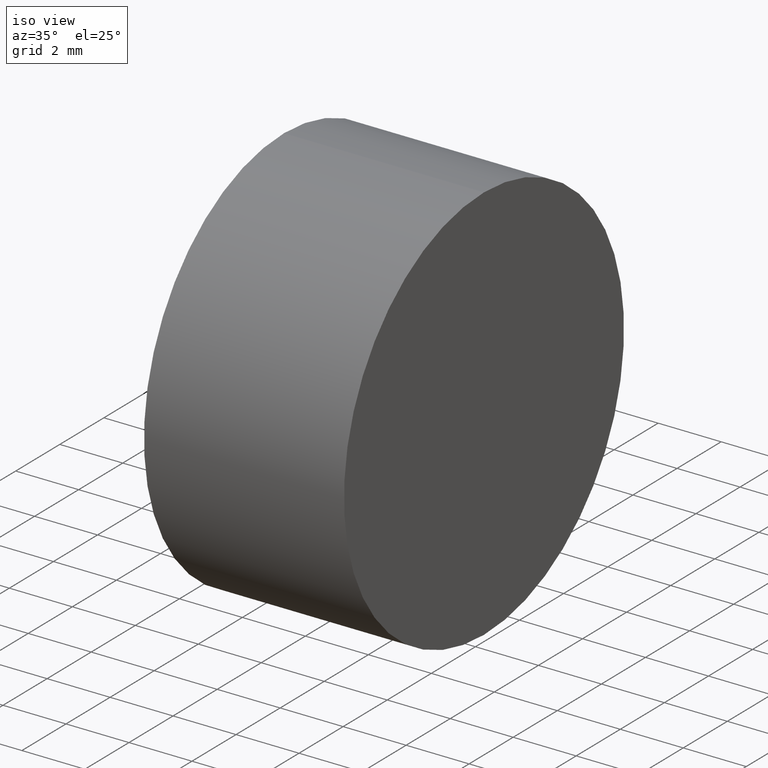
[diagram: clean part render]
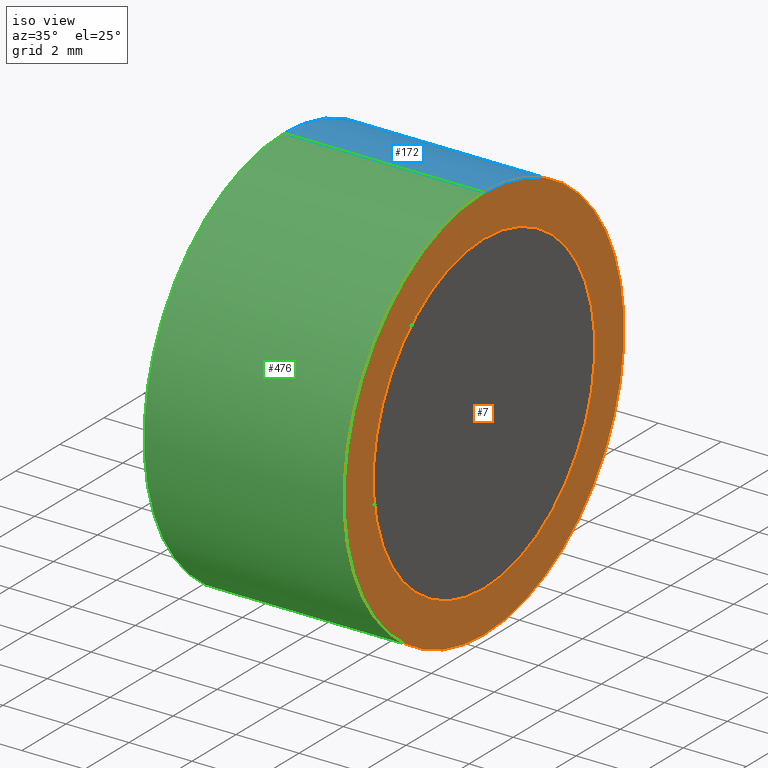
[diagram: same view with three faces highlighted in distinct colors, each labeled with its STEP entity id]
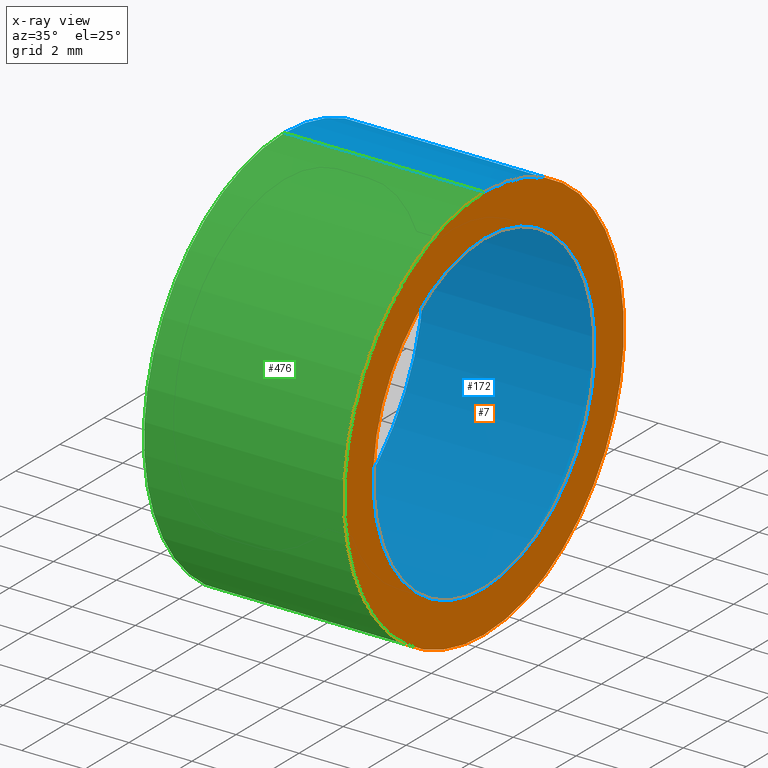
[diagram: x-ray of the same camera — body ghosted, the three highlighted faces saturated]
A machine part, iso view with three faces highlighted in distinct colors.
The next image is the same camera in x-ray (body ghosted, the three faces saturated) — at least one of them is partly hidden behind the body in this view.
Their STEP definitions:

[orange] entity #7 — the highlighted planar face has unit normal (1, 0, 0).
#7 = ADVANCED_FACE ( 'NONE', ( #564, #51 ), #512, .T. ) ;
#13 = CARTESIAN_POINT ( 'NONE',  ( 234.1145190849216200, 0.0000000000000000000, 0.0000000000000000000 ) ) ;
#29 = CARTESIAN_POINT ( 'NONE',  ( 234.1145190849216200, 108.2256958952383700, 0.0000000000000000000 ) ) ;
#41 = CARTESIAN_POINT ( 'NONE',  ( 234.1145190849216200, 108.2256958952383700, 5.025000000000015500 ) ) ;
#51 = FACE_OUTER_BOUND ( 'NONE', #432, .T. ) ;
#78 = DIRECTION ( 'NONE',  ( -1.000000000000000000, -0.0000000000000000000, -0.0000000000000000000 ) ) ;
#84 = EDGE_CURVE ( 'NONE', #565, #414, #580, .T. ) ;
#90 = EDGE_LOOP ( 'NONE', ( #109, #175 ) ) ;
#109 = ORIENTED_EDGE ( 'NONE', *, *, #84, .T. ) ;
#126 = EDGE_CURVE ( 'NONE', #174, #422, #384, .T. ) ;
#140 = DIRECTION ( 'NONE',  ( -1.000000000000000000, -0.0000000000000000000, -0.0000000000000000000 ) ) ;
#157 = EDGE_CURVE ( 'NONE', #422, #174, #464, .T. ) ;
#166 = DIRECTION ( 'NONE',  ( 1.000000000000000000, 0.0000000000000000000, 0.0000000000000000000 ) ) ;
#173 = DIRECTION ( 'NONE',  ( 0.0000000000000000000, 0.0000000000000000000, -1.000000000000000000 ) ) ;
#174 = VERTEX_POINT ( 'NONE', #659 ) ;
#175 = ORIENTED_EDGE ( 'NONE', *, *, #406, .T. ) ;
#186 = AXIS2_PLACEMENT_3D ( 'NONE', #495, #140, #434 ) ;
#197 = CARTESIAN_POINT ( 'NONE',  ( 234.1145190849216200, 108.2256958952383700, 0.0000000000000000000 ) ) ;
#203 = AXIS2_PLACEMENT_3D ( 'NONE', #13, #166, #173 ) ;
#289 = AXIS2_PLACEMENT_3D ( 'NONE', #197, #551, #606 ) ;
#296 = DIRECTION ( 'NONE',  ( -1.000000000000000000, -0.0000000000000000000, -0.0000000000000000000 ) ) ;
#324 = ORIENTED_EDGE ( 'NONE', *, *, #126, .F. ) ;
#356 = CARTESIAN_POINT ( 'NONE',  ( 234.1145190849216200, 108.2256958952383700, 0.0000000000000000000 ) ) ;
#384 = CIRCLE ( 'NONE', #289, 6.350000000000008500 ) ;
#406 = EDGE_CURVE ( 'NONE', #414, #565, #489, .T. ) ;
#414 = VERTEX_POINT ( 'NONE', #433 ) ;
#422 = VERTEX_POINT ( 'NONE', #429 ) ;
#428 = DIRECTION ( 'NONE',  ( 0.0000000000000000000, 0.0000000000000000000, 1.000000000000000000 ) ) ;
#429 = CARTESIAN_POINT ( 'NONE',  ( 234.1145190849216200, 108.2256958952383700, -6.350000000000008500 ) ) ;
#432 = EDGE_LOOP ( 'NONE', ( #324, #621 ) ) ;
#433 = CARTESIAN_POINT ( 'NONE',  ( 234.1145190849216200, 108.2256958952383700, -5.025000000000015500 ) ) ;
#434 = DIRECTION ( 'NONE',  ( 0.0000000000000000000, 0.0000000000000000000, 1.000000000000000000 ) ) ;
#464 = CIRCLE ( 'NONE', #523, 6.350000000000008500 ) ;
#489 = CIRCLE ( 'NONE', #550, 5.025000000000015500 ) ;
#495 = CARTESIAN_POINT ( 'NONE',  ( 234.1145190849216200, 108.2256958952383700, 0.0000000000000000000 ) ) ;
#512 = PLANE ( 'NONE',  #203 ) ;
#523 = AXIS2_PLACEMENT_3D ( 'NONE', #356, #296, #650 ) ;
#550 = AXIS2_PLACEMENT_3D ( 'NONE', #29, #78, #428 ) ;
#551 = DIRECTION ( 'NONE',  ( -1.000000000000000000, -0.0000000000000000000, -0.0000000000000000000 ) ) ;
#564 = FACE_BOUND ( 'NONE', #90, .T. ) ;
#565 = VERTEX_POINT ( 'NONE', #41 ) ;
#580 = CIRCLE ( 'NONE', #186, 5.025000000000015500 ) ;
#606 = DIRECTION ( 'NONE',  ( 0.0000000000000000000, 0.0000000000000000000, 1.000000000000000000 ) ) ;
#621 = ORIENTED_EDGE ( 'NONE', *, *, #157, .F. ) ;
#650 = DIRECTION ( 'NONE',  ( 0.0000000000000000000, 0.0000000000000000000, 1.000000000000000000 ) ) ;
#659 = CARTESIAN_POINT ( 'NONE',  ( 234.1145190849216200, 108.2256958952383700, 6.350000000000008500 ) ) ;

[blue] entity #172 — the highlighted cylindrical surface (partial cylindrical patch) has radius 6.35 mm, axis along (-1, -0, -0).
#1 = EDGE_CURVE ( 'NONE', #427, #516, #292, .T. ) ;
#52 = DIRECTION ( 'NONE',  ( 0.0000000000000000000, 0.0000000000000000000, 1.000000000000000000 ) ) ;
#66 = ORIENTED_EDGE ( 'NONE', *, *, #126, .T. ) ;
#108 = DIRECTION ( 'NONE',  ( -1.000000000000000000, -0.0000000000000000000, -0.0000000000000000000 ) ) ;
#122 = LINE ( 'NONE', #359, #300 ) ;
#126 = EDGE_CURVE ( 'NONE', #174, #422, #384, .T. ) ;
#129 = VECTOR ( 'NONE', #556, 1000.000000000000000 ) ;
#146 = ORIENTED_EDGE ( 'NONE', *, *, #1, .F. ) ;
#160 = DIRECTION ( 'NONE',  ( -1.000000000000000000, -0.0000000000000000000, -0.0000000000000000000 ) ) ;
#172 = ADVANCED_FACE ( 'NONE', ( #658 ), #265, .T. ) ;
#174 = VERTEX_POINT ( 'NONE', #659 ) ;
#197 = CARTESIAN_POINT ( 'NONE',  ( 234.1145190849216200, 108.2256958952383700, 0.0000000000000000000 ) ) ;
#221 = ORIENTED_EDGE ( 'NONE', *, *, #319, .F. ) ;
#247 = DIRECTION ( 'NONE',  ( -1.000000000000000000, -0.0000000000000000000, -0.0000000000000000000 ) ) ;
#265 = CYLINDRICAL_SURFACE ( 'NONE', #479, 6.350000000000008500 ) ;
#289 = AXIS2_PLACEMENT_3D ( 'NONE', #197, #551, #606 ) ;
#292 = CIRCLE ( 'NONE', #334, 6.350000000000008500 ) ;
#295 = CARTESIAN_POINT ( 'NONE',  ( 227.7645190849216300, 108.2256958952383700, -6.350000000000008500 ) ) ;
#300 = VECTOR ( 'NONE', #247, 1000.000000000000000 ) ;
#319 = EDGE_CURVE ( 'NONE', #174, #427, #122, .T. ) ;
#334 = AXIS2_PLACEMENT_3D ( 'NONE', #411, #160, #511 ) ;
#358 = EDGE_CURVE ( 'NONE', #422, #516, #614, .T. ) ;
#359 = CARTESIAN_POINT ( 'NONE',  ( 219.9023322559852100, 108.2256958952383700, 6.350000000000008500 ) ) ;
#384 = CIRCLE ( 'NONE', #289, 6.350000000000008500 ) ;
#411 = CARTESIAN_POINT ( 'NONE',  ( 227.7645190849216300, 108.2256958952383700, 0.0000000000000000000 ) ) ;
#422 = VERTEX_POINT ( 'NONE', #429 ) ;
#427 = VERTEX_POINT ( 'NONE', #575 ) ;
#429 = CARTESIAN_POINT ( 'NONE',  ( 234.1145190849216200, 108.2256958952383700, -6.350000000000008500 ) ) ;
#479 = AXIS2_PLACEMENT_3D ( 'NONE', #557, #108, #52 ) ;
#492 = ORIENTED_EDGE ( 'NONE', *, *, #358, .T. ) ;
#511 = DIRECTION ( 'NONE',  ( 0.0000000000000000000, 0.0000000000000000000, 1.000000000000000000 ) ) ;
#516 = VERTEX_POINT ( 'NONE', #295 ) ;
#551 = DIRECTION ( 'NONE',  ( -1.000000000000000000, -0.0000000000000000000, -0.0000000000000000000 ) ) ;
#556 = DIRECTION ( 'NONE',  ( -1.000000000000000000, -0.0000000000000000000, -0.0000000000000000000 ) ) ;
#557 = CARTESIAN_POINT ( 'NONE',  ( 219.9023322559852100, 108.2256958952383700, 0.0000000000000000000 ) ) ;
#575 = CARTESIAN_POINT ( 'NONE',  ( 227.7645190849216300, 108.2256958952383700, 6.350000000000008500 ) ) ;
#596 = CARTESIAN_POINT ( 'NONE',  ( 219.9023322559852100, 108.2256958952383700, -6.350000000000008500 ) ) ;
#600 = EDGE_LOOP ( 'NONE', ( #66, #492, #146, #221 ) ) ;
#606 = DIRECTION ( 'NONE',  ( 0.0000000000000000000, 0.0000000000000000000, 1.000000000000000000 ) ) ;
#614 = LINE ( 'NONE', #596, #129 ) ;
#658 = FACE_OUTER_BOUND ( 'NONE', #600, .T. ) ;
#659 = CARTESIAN_POINT ( 'NONE',  ( 234.1145190849216200, 108.2256958952383700, 6.350000000000008500 ) ) ;

[green] entity #476 — the highlighted cylindrical surface (partial cylindrical patch) has radius 6.35 mm, axis along (-1, -0, -0).
#17 = AXIS2_PLACEMENT_3D ( 'NONE', #436, #35, #284 ) ;
#35 = DIRECTION ( 'NONE',  ( -1.000000000000000000, -0.0000000000000000000, -0.0000000000000000000 ) ) ;
#55 = EDGE_CURVE ( 'NONE', #516, #427, #660, .T. ) ;
#81 = ORIENTED_EDGE ( 'NONE', *, *, #358, .F. ) ;
#122 = LINE ( 'NONE', #359, #300 ) ;
#129 = VECTOR ( 'NONE', #556, 1000.000000000000000 ) ;
#157 = EDGE_CURVE ( 'NONE', #422, #174, #464, .T. ) ;
#174 = VERTEX_POINT ( 'NONE', #659 ) ;
#176 = CARTESIAN_POINT ( 'NONE',  ( 227.7645190849216300, 108.2256958952383700, 0.0000000000000000000 ) ) ;
#247 = DIRECTION ( 'NONE',  ( -1.000000000000000000, -0.0000000000000000000, -0.0000000000000000000 ) ) ;
#270 = ORIENTED_EDGE ( 'NONE', *, *, #55, .F. ) ;
#275 = DIRECTION ( 'NONE',  ( 0.0000000000000000000, 0.0000000000000000000, 1.000000000000000000 ) ) ;
#284 = DIRECTION ( 'NONE',  ( 0.0000000000000000000, 0.0000000000000000000, 1.000000000000000000 ) ) ;
#295 = CARTESIAN_POINT ( 'NONE',  ( 227.7645190849216300, 108.2256958952383700, -6.350000000000008500 ) ) ;
#296 = DIRECTION ( 'NONE',  ( -1.000000000000000000, -0.0000000000000000000, -0.0000000000000000000 ) ) ;
#300 = VECTOR ( 'NONE', #247, 1000.000000000000000 ) ;
#312 = ORIENTED_EDGE ( 'NONE', *, *, #157, .T. ) ;
#319 = EDGE_CURVE ( 'NONE', #174, #427, #122, .T. ) ;
#325 = DIRECTION ( 'NONE',  ( -1.000000000000000000, -0.0000000000000000000, -0.0000000000000000000 ) ) ;
#356 = CARTESIAN_POINT ( 'NONE',  ( 234.1145190849216200, 108.2256958952383700, 0.0000000000000000000 ) ) ;
#358 = EDGE_CURVE ( 'NONE', #422, #516, #614, .T. ) ;
#359 = CARTESIAN_POINT ( 'NONE',  ( 219.9023322559852100, 108.2256958952383700, 6.350000000000008500 ) ) ;
#366 = EDGE_LOOP ( 'NONE', ( #81, #312, #637, #270 ) ) ;
#368 = FACE_OUTER_BOUND ( 'NONE', #366, .T. ) ;
#422 = VERTEX_POINT ( 'NONE', #429 ) ;
#427 = VERTEX_POINT ( 'NONE', #575 ) ;
#429 = CARTESIAN_POINT ( 'NONE',  ( 234.1145190849216200, 108.2256958952383700, -6.350000000000008500 ) ) ;
#436 = CARTESIAN_POINT ( 'NONE',  ( 219.9023322559852100, 108.2256958952383700, 0.0000000000000000000 ) ) ;
#464 = CIRCLE ( 'NONE', #523, 6.350000000000008500 ) ;
#476 = ADVANCED_FACE ( 'NONE', ( #368 ), #588, .T. ) ;
#504 = AXIS2_PLACEMENT_3D ( 'NONE', #176, #325, #275 ) ;
#516 = VERTEX_POINT ( 'NONE', #295 ) ;
#523 = AXIS2_PLACEMENT_3D ( 'NONE', #356, #296, #650 ) ;
#556 = DIRECTION ( 'NONE',  ( -1.000000000000000000, -0.0000000000000000000, -0.0000000000000000000 ) ) ;
#575 = CARTESIAN_POINT ( 'NONE',  ( 227.7645190849216300, 108.2256958952383700, 6.350000000000008500 ) ) ;
#588 = CYLINDRICAL_SURFACE ( 'NONE', #17, 6.350000000000008500 ) ;
#596 = CARTESIAN_POINT ( 'NONE',  ( 219.9023322559852100, 108.2256958952383700, -6.350000000000008500 ) ) ;
#614 = LINE ( 'NONE', #596, #129 ) ;
#637 = ORIENTED_EDGE ( 'NONE', *, *, #319, .T. ) ;
#650 = DIRECTION ( 'NONE',  ( 0.0000000000000000000, 0.0000000000000000000, 1.000000000000000000 ) ) ;
#659 = CARTESIAN_POINT ( 'NONE',  ( 234.1145190849216200, 108.2256958952383700, 6.350000000000008500 ) ) ;
#660 = CIRCLE ( 'NONE', #504, 6.350000000000008500 ) ;